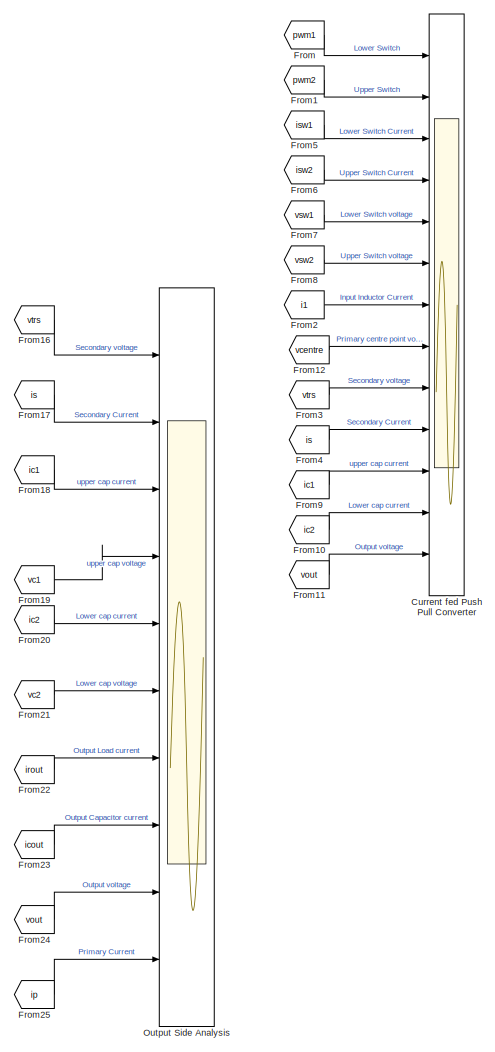
[diagram: root canvas - part 1/3, right side, full height]
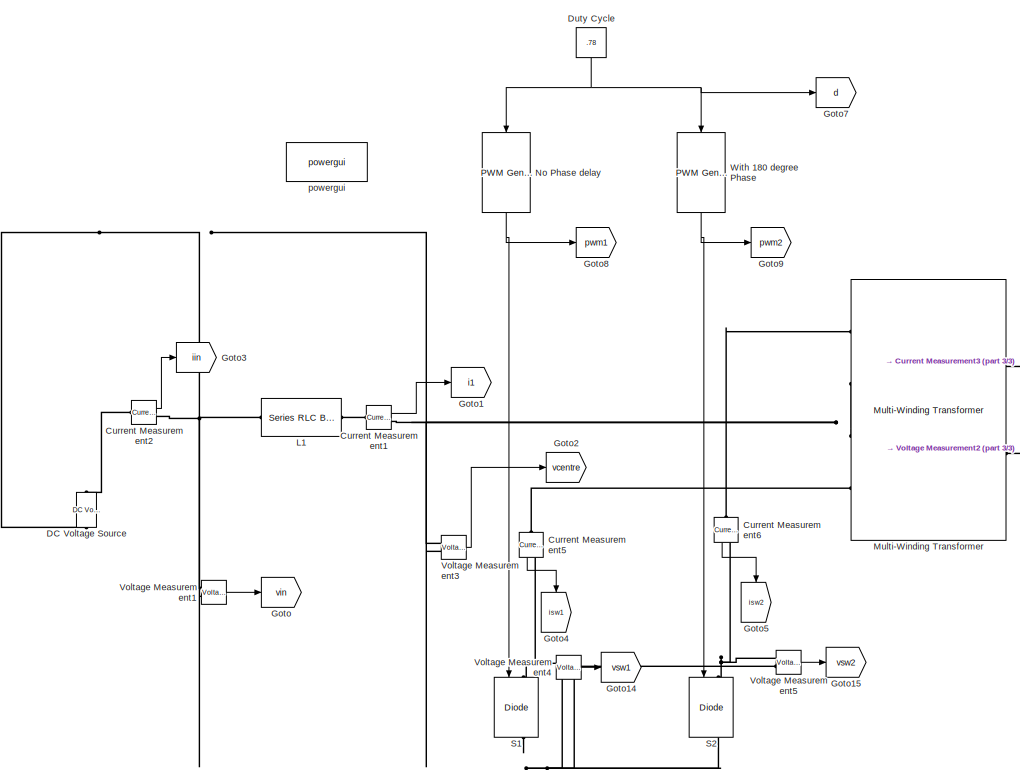
[diagram: root canvas - part 2/3, middle left region]
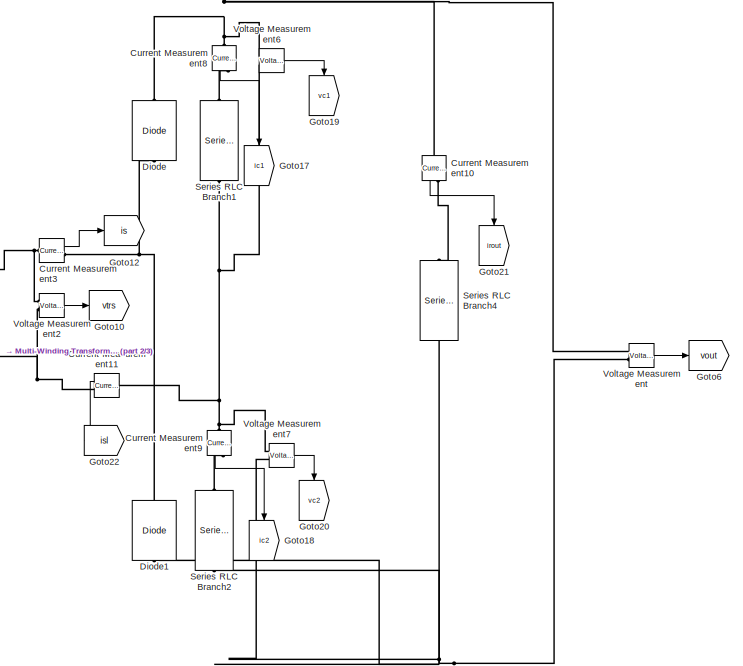
[diagram: root canvas - part 3/3, central region]
MODEL slx_fb0e4992ad41
KIND model
CONFIG AbsTol = auto
CONFIG EnableMultiTasking = off
CONFIG FixedStep = auto
CONFIG MaxStep = auto
CONFIG MinStep = auto
CONFIG RelTol = 1e-3
CONFIG SampleTimeConstraint = Unconstrained
CONFIG Solver = VariableStepAuto
CONFIG SolverName = VariableStepAuto
CONFIG StartTime = 0.0
CONFIG StopTime = Tpwm*30000
BLOCK [Reference] Current Measurement1  REF=powerlib/Measurements/Current Measurement
  Ports = [0, 1, 0, 0, 0, 1, 1]
  SourceBlock = powerlib/Measurements/Current Measurement
  SourceProductBaseCode = PS
  SourceProductName = Simscape Electrical
  SourceType = Current Measurement
  UserDataPersistent = on
BLOCK [Reference] Current Measurement10  REF=powerlib/Measurements/Current Measurement
  Ports = [0, 1, 0, 0, 0, 1, 1]
  SourceBlock = powerlib/Measurements/Current Measurement
  SourceProductBaseCode = PS
  SourceProductName = Simscape Electrical
  SourceType = Current Measurement
  UserDataPersistent = on
BLOCK [Reference] Current Measurement11  REF=powerlib/Measurements/Current Measurement
  Ports = [0, 1, 0, 0, 0, 1, 1]
  SourceBlock = powerlib/Measurements/Current Measurement
  SourceProductBaseCode = PS
  SourceProductName = Simscape Electrical
  SourceType = Current Measurement
  UserDataPersistent = on
BLOCK [Reference] Current Measurement2  REF=powerlib/Measurements/Current Measurement
  Ports = [0, 1, 0, 0, 0, 1, 1]
  SourceBlock = powerlib/Measurements/Current Measurement
  SourceProductBaseCode = PS
  SourceProductName = Simscape Electrical
  SourceType = Current Measurement
  UserDataPersistent = on
BLOCK [Reference] Current Measurement3  REF=powerlib/Measurements/Current Measurement
  Ports = [0, 1, 0, 0, 0, 1, 1]
  SourceBlock = powerlib/Measurements/Current Measurement
  SourceProductBaseCode = PS
  SourceProductName = Simscape Electrical
  SourceType = Current Measurement
  UserDataPersistent = on
BLOCK [Reference] Current Measurement5  REF=powerlib/Measurements/Current Measurement
  Ports = [0, 1, 0, 0, 0, 1, 1]
  SourceBlock = powerlib/Measurements/Current Measurement
  SourceProductBaseCode = PS
  SourceProductName = Simscape Electrical
  SourceType = Current Measurement
  UserDataPersistent = on
BLOCK [Reference] Current Measurement6  REF=powerlib/Measurements/Current Measurement
  Ports = [0, 1, 0, 0, 0, 1, 1]
  SourceBlock = powerlib/Measurements/Current Measurement
  SourceProductBaseCode = PS
  SourceProductName = Simscape Electrical
  SourceType = Current Measurement
  UserDataPersistent = on
BLOCK [Reference] Current Measurement8  REF=powerlib/Measurements/Current Measurement
  Ports = [0, 1, 0, 0, 0, 1, 1]
  SourceBlock = powerlib/Measurements/Current Measurement
  SourceProductBaseCode = PS
  SourceProductName = Simscape Electrical
  SourceType = Current Measurement
  UserDataPersistent = on
BLOCK [Reference] Current Measurement9  REF=powerlib/Measurements/Current Measurement
  Ports = [0, 1, 0, 0, 0, 1, 1]
  SourceBlock = powerlib/Measurements/Current Measurement
  SourceProductBaseCode = PS
  SourceProductName = Simscape Electrical
  SourceType = Current Measurement
  UserDataPersistent = on
BLOCK [Scope] Current fed Push Pull Converter
  Floating = off
  NumInputPorts = 13
  Ports = [13]
  ScopeSpecificationString = Simulink.scopes.TimeScopeBlockCfg('CurrentConfiguration', extmgr.ConfigurationSet(extmgr.Configuration('Core','General UI',true),extmgr.Configuration('Core','Source UI',true),extmgr.Configuration('Sources','WiredSimulink',true),extmgr.Configuration('Visuals','Time Domain',true,'SerializedDisplays',{struct('MinYLimReal','-0.125','MaxYLimReal','1.125','YLabelReal','','MinYLimMag','0.00000','MaxYLimM...<+12089ch>
BLOCK [Reference] DC Voltage Source  REF=powerlib/Electrical
Sources/DC Voltage Source
  Ports = [0, 0, 0, 0, 0, 1, 1]
  SourceBlock = powerlib/Electrical\nSources/DC Voltage Source
  SourceProductBaseCode = PS
  SourceProductName = Simscape Electrical
  SourceType = DC Voltage Source
BLOCK [Reference] Diode  REF=powerlib/Power
Electronics/Diode
  Ports = [0, 0, 0, 0, 0, 1, 1]
  SourceBlock = powerlib/Power\nElectronics/Diode
  SourceProductBaseCode = PS
  SourceProductName = Simscape Electrical
  SourceType = Diode
BLOCK [Reference] Diode1  REF=powerlib/Power
Electronics/Diode
  Ports = [0, 0, 0, 0, 0, 1, 1]
  SourceBlock = powerlib/Power\nElectronics/Diode
  SourceProductBaseCode = PS
  SourceProductName = Simscape Electrical
  SourceType = Diode
BLOCK [Constant] Duty Cycle
  Value = .78
BLOCK [From] From
  GotoTag = pwm1
BLOCK [From] From1
  GotoTag = pwm2
BLOCK [From] From10
  GotoTag = ic2
BLOCK [From] From11
  GotoTag = vout
BLOCK [From] From12
  GotoTag = vcentre
BLOCK [From] From16
  GotoTag = vtrs
BLOCK [From] From17
  GotoTag = is
BLOCK [From] From18
  GotoTag = ic1
BLOCK [From] From19
  GotoTag = vc1
BLOCK [From] From2
  GotoTag = i1
BLOCK [From] From20
  GotoTag = ic2
BLOCK [From] From21
  GotoTag = vc2
BLOCK [From] From22
  GotoTag = irout
BLOCK [From] From23
  GotoTag = icout
BLOCK [From] From24
  GotoTag = vout
BLOCK [From] From25
  GotoTag = ip
BLOCK [From] From3
  GotoTag = vtrs
BLOCK [From] From4
  GotoTag = is
BLOCK [From] From5
  GotoTag = isw1
BLOCK [From] From6
  GotoTag = isw2
BLOCK [From] From7
  GotoTag = vsw1
BLOCK [From] From8
  GotoTag = vsw2
BLOCK [From] From9
  GotoTag = ic1
BLOCK [Goto] Goto
  GotoTag = vin
BLOCK [Goto] Goto1
  GotoTag = i1
BLOCK [Goto] Goto10
  GotoTag = vtrs
BLOCK [Goto] Goto12
  GotoTag = is
BLOCK [Goto] Goto14
  GotoTag = vsw1
BLOCK [Goto] Goto15
  GotoTag = vsw2
BLOCK [Goto] Goto17
  GotoTag = ic1
BLOCK [Goto] Goto18
  GotoTag = ic2
BLOCK [Goto] Goto19
  GotoTag = vc1
BLOCK [Goto] Goto2
  GotoTag = vcentre
BLOCK [Goto] Goto20
  GotoTag = vc2
BLOCK [Goto] Goto21
  GotoTag = irout
BLOCK [Goto] Goto22
  GotoTag = isl
BLOCK [Goto] Goto3
  GotoTag = iin
BLOCK [Goto] Goto4
  GotoTag = isw1
BLOCK [Goto] Goto5
  GotoTag = isw2
BLOCK [Goto] Goto6
  GotoTag = vout
BLOCK [Goto] Goto7
  GotoTag = d
BLOCK [Goto] Goto8
  GotoTag = pwm1
BLOCK [Goto] Goto9
  GotoTag = pwm2
BLOCK [Reference] L1  REF=powerlib/Elements/Series RLC Branch
  Ports = [0, 0, 0, 0, 0, 1, 1]
  SourceBlock = powerlib/Elements/Series RLC Branch
  SourceProductBaseCode = PS
  SourceProductName = Simscape Electrical
  SourceType = Series RLC Branch
BLOCK [Reference] Multi-Winding Transformer  REF=powerlib/Elements/Multi-Winding
Transformer
  Ports = [0, 0, 0, 0, 0, 4, 2]
  SourceBlock = powerlib/Elements/Multi-Winding\nTransformer
  SourceProductBaseCode = PS
  SourceProductName = Simscape Electrical
  SourceType = Multi-Winding Transformer
BLOCK [Reference] No Phase delay  REF=eePwmGenerator/PWM Generator
  Ports = [1, 1]
  SourceBlock = eePwmGenerator/PWM Generator
  SourceProductBaseCode = PS
  SourceProductName = Simscape Electrical
  SourceType = PWM Generator
BLOCK [Scope] Output Side Analysis
  Floating = off
  NumInputPorts = 10
  Ports = [10]
  ScopeSpecificationString = Simulink.scopes.TimeScopeBlockCfg('CurrentConfiguration', extmgr.ConfigurationSet(extmgr.Configuration('Core','General UI',true),extmgr.Configuration('Core','Source UI',true),extmgr.Configuration('Sources','WiredSimulink',true,'DataLoggingVariableName','output_values','DataLogging',true,'DataLoggingSaveFormat','StructureWithTime'),extmgr.Configuration('Visuals','Time Domain',true,'SerializedDispla...<+9322ch>
BLOCK [Reference] S1  REF=powerlib/Power
Electronics/IGBT//Diode
  Ports = [1, 1, 0, 0, 0, 1, 1]
  SourceBlock = powerlib/Power\nElectronics/IGBT//Diode
  SourceProductBaseCode = PS
  SourceProductName = Simscape Electrical
  SourceType = IGBT/Diode
BLOCK [Reference] S2  REF=powerlib/Power
Electronics/IGBT//Diode
  Ports = [1, 1, 0, 0, 0, 1, 1]
  SourceBlock = powerlib/Power\nElectronics/IGBT//Diode
  SourceProductBaseCode = PS
  SourceProductName = Simscape Electrical
  SourceType = IGBT/Diode
BLOCK [Reference] Series RLC Branch1  REF=powerlib/Elements/Series RLC Branch
  Ports = [0, 0, 0, 0, 0, 1, 1]
  SourceBlock = powerlib/Elements/Series RLC Branch
  SourceProductBaseCode = PS
  SourceProductName = Simscape Electrical
  SourceType = Series RLC Branch
BLOCK [Reference] Series RLC Branch2  REF=powerlib/Elements/Series RLC Branch
  Ports = [0, 0, 0, 0, 0, 1, 1]
  SourceBlock = powerlib/Elements/Series RLC Branch
  SourceProductBaseCode = PS
  SourceProductName = Simscape Electrical
  SourceType = Series RLC Branch
BLOCK [Reference] Series RLC Branch4  REF=powerlib/Elements/Series RLC Branch
  Ports = [0, 0, 0, 0, 0, 1, 1]
  SourceBlock = powerlib/Elements/Series RLC Branch
  SourceProductBaseCode = PS
  SourceProductName = Simscape Electrical
  SourceType = Series RLC Branch
BLOCK [Reference] Voltage Measurement  REF=powerlib/Measurements/Voltage Measurement
  Ports = [0, 1, 0, 0, 0, 2]
  SourceBlock = powerlib/Measurements/Voltage Measurement
  SourceProductBaseCode = PS
  SourceProductName = Simscape Electrical
  SourceType = Voltage Measurement
  UserDataPersistent = on
BLOCK [Reference] Voltage Measurement1  REF=powerlib/Measurements/Voltage Measurement
  Ports = [0, 1, 0, 0, 0, 2]
  SourceBlock = powerlib/Measurements/Voltage Measurement
  SourceProductBaseCode = PS
  SourceProductName = Simscape Electrical
  SourceType = Voltage Measurement
  UserDataPersistent = on
BLOCK [Reference] Voltage Measurement2  REF=powerlib/Measurements/Voltage Measurement
  Ports = [0, 1, 0, 0, 0, 2]
  SourceBlock = powerlib/Measurements/Voltage Measurement
  SourceProductBaseCode = PS
  SourceProductName = Simscape Electrical
  SourceType = Voltage Measurement
  UserDataPersistent = on
BLOCK [Reference] Voltage Measurement3  REF=powerlib/Measurements/Voltage Measurement
  Ports = [0, 1, 0, 0, 0, 2]
  SourceBlock = powerlib/Measurements/Voltage Measurement
  SourceProductBaseCode = PS
  SourceProductName = Simscape Electrical
  SourceType = Voltage Measurement
  UserDataPersistent = on
BLOCK [Reference] Voltage Measurement4  REF=powerlib/Measurements/Voltage Measurement
  Ports = [0, 1, 0, 0, 0, 2]
  SourceBlock = powerlib/Measurements/Voltage Measurement
  SourceProductBaseCode = PS
  SourceProductName = Simscape Electrical
  SourceType = Voltage Measurement
  UserDataPersistent = on
BLOCK [Reference] Voltage Measurement5  REF=powerlib/Measurements/Voltage Measurement
  Ports = [0, 1, 0, 0, 0, 2]
  SourceBlock = powerlib/Measurements/Voltage Measurement
  SourceProductBaseCode = PS
  SourceProductName = Simscape Electrical
  SourceType = Voltage Measurement
  UserDataPersistent = on
BLOCK [Reference] Voltage Measurement6  REF=powerlib/Measurements/Voltage Measurement
  Ports = [0, 1, 0, 0, 0, 2]
  SourceBlock = powerlib/Measurements/Voltage Measurement
  SourceProductBaseCode = PS
  SourceProductName = Simscape Electrical
  SourceType = Voltage Measurement
  UserDataPersistent = on
BLOCK [Reference] Voltage Measurement7  REF=powerlib/Measurements/Voltage Measurement
  Ports = [0, 1, 0, 0, 0, 2]
  SourceBlock = powerlib/Measurements/Voltage Measurement
  SourceProductBaseCode = PS
  SourceProductName = Simscape Electrical
  SourceType = Voltage Measurement
  UserDataPersistent = on
BLOCK [Reference] With 180 degree Phase  REF=eePwmGenerator/PWM Generator
  Ports = [1, 1]
  SourceBlock = eePwmGenerator/PWM Generator
  SourceProductBaseCode = PS
  SourceProductName = Simscape Electrical
  SourceType = PWM Generator
BLOCK [Reference] powergui  REF=powerlib/powergui
  Ports = []
  Priority = 1
  SourceBlock = powerlib/powergui
  SourceProductBaseCode = PS
  SourceProductName = Simscape Electrical
  SourceType = PSB option menu block
LINE Current Measurement10:1 -> Goto21:1
LINE Current Measurement11:1 -> Goto22:1
LINE Current Measurement1:1 -> Goto1:1
LINE Current Measurement2:1 -> Goto3:1
LINE Current Measurement3:1 -> Goto12:1
LINE Current Measurement5:1 -> Goto4:1
LINE Current Measurement6:1 -> Goto5:1
LINE Current Measurement8:1 -> Goto17:1
LINE Current Measurement9:1 -> Goto18:1
NET Duty Cycle:1 -> Goto7:1, No Phase delay:1, With 180 degree Phase:1
LINE From10:1 -> Current fed Push Pull Converter:12
LINE From11:1 -> Current fed Push Pull Converter:13
LINE From12:1 -> Current fed Push Pull Converter:8
LINE From16:1 -> Output Side Analysis:1
LINE From17:1 -> Output Side Analysis:2
LINE From18:1 -> Output Side Analysis:3
LINE From19:1 -> Output Side Analysis:4
LINE From1:1 -> Current fed Push Pull Converter:2
LINE From20:1 -> Output Side Analysis:5
LINE From21:1 -> Output Side Analysis:6
LINE From22:1 -> Output Side Analysis:7
LINE From23:1 -> Output Side Analysis:8
LINE From24:1 -> Output Side Analysis:9
LINE From25:1 -> Output Side Analysis:10
LINE From2:1 -> Current fed Push Pull Converter:7
LINE From3:1 -> Current fed Push Pull Converter:9
LINE From4:1 -> Current fed Push Pull Converter:10
LINE From5:1 -> Current fed Push Pull Converter:3
LINE From6:1 -> Current fed Push Pull Converter:4
LINE From7:1 -> Current fed Push Pull Converter:5
LINE From8:1 -> Current fed Push Pull Converter:6
LINE From9:1 -> Current fed Push Pull Converter:11
LINE From:1 -> Current fed Push Pull Converter:1
NET No Phase delay:1 -> Goto8:1, S1:1
LINE Voltage Measurement1:1 -> Goto:1
LINE Voltage Measurement2:1 -> Goto10:1
LINE Voltage Measurement3:1 -> Goto2:1
LINE Voltage Measurement4:1 -> Goto14:1
LINE Voltage Measurement5:1 -> Goto15:1
LINE Voltage Measurement6:1 -> Goto19:1
LINE Voltage Measurement7:1 -> Goto20:1
LINE Voltage Measurement:1 -> Goto6:1
NET With 180 degree Phase:1 -> Goto9:1, S2:1
PNET net1: Current Measurement10:LConn1 -- Current Measurement8:LConn1 -- Diode:RConn1 -- Voltage Measurement6:LConn1 -- Voltage Measurement:LConn1
PLINE Current Measurement10:RConn1 -- Series RLC Branch4:LConn1
PNET net2: Current Measurement11:LConn1 -- Current Measurement9:LConn1 -- Series RLC Branch1:RConn1 -- Voltage Measurement6:LConn2 -- Voltage Measurement7:LConn1
PNET net3: Current Measurement11:RConn1 -- Multi-Winding Transformer:RConn2 -- Voltage Measurement2:LConn2
PLINE Current Measurement1:LConn1 -- L1:RConn1
PNET net4: Current Measurement1:RConn1 -- Multi-Winding Transformer:LConn2 -- Multi-Winding Transformer:LConn3 -- Voltage Measurement3:LConn1
PLINE Current Measurement2:LConn1 -- DC Voltage Source:RConn1
PNET net5: Current Measurement2:RConn1 -- L1:LConn1 -- Voltage Measurement1:LConn1
PNET net6: Current Measurement3:LConn1 -- Multi-Winding Transformer:RConn1 -- Voltage Measurement2:LConn1
PNET net7: Current Measurement3:RConn1 -- Diode1:RConn1 -- Diode:LConn1
PLINE Current Measurement5:LConn1 -- Multi-Winding Transformer:LConn4
PNET net8: Current Measurement5:RConn1 -- S1:LConn1 -- Voltage Measurement4:LConn1
PLINE Current Measurement6:LConn1 -- Multi-Winding Transformer:LConn1
PNET net9: Current Measurement6:RConn1 -- S2:LConn1 -- Voltage Measurement5:LConn1
PLINE Current Measurement8:RConn1 -- Series RLC Branch1:LConn1
PLINE Current Measurement9:RConn1 -- Series RLC Branch2:LConn1
PNET net10: DC Voltage Source:LConn1 -- S1:RConn1 -- S2:RConn1 -- Voltage Measurement1:LConn2 -- Voltage Measurement3:LConn2 -- Voltage Measurement4:LConn2 -- Voltage Measurement5:LConn2
PNET net11: Diode1:LConn1 -- Series RLC Branch2:RConn1 -- Series RLC Branch4:RConn1 -- Voltage Measurement7:LConn2 -- Voltage Measurement:LConn2
note: NET lines group one-source signal fan-out (src -> all destinations, sorted); 1:1 wires keep LINE; PNET lines group multi-terminal physical nets as a canonical sorted terminal list (undirected conserving connections); 2-terminal nets keep the pairwise PLINE form
